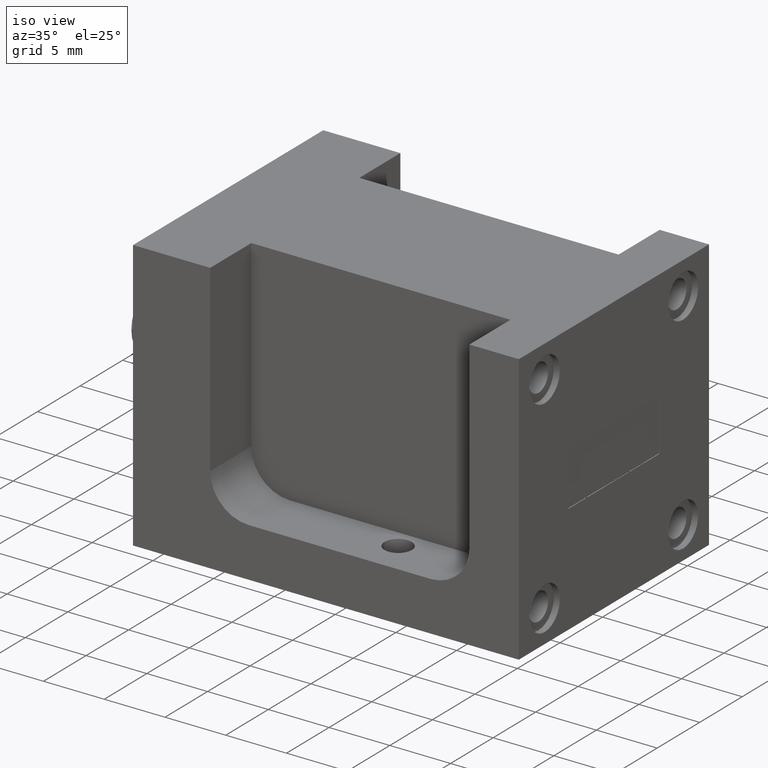
[diagram: clean part render]
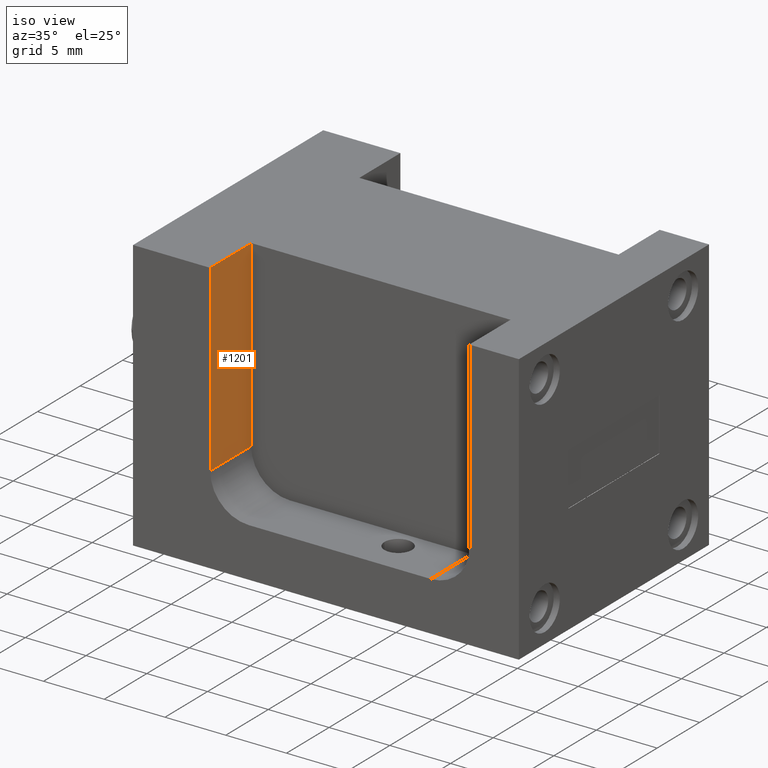
[diagram: same view with one face highlighted and labeled with its STEP entity id]
A machine part, iso view. The second image highlights one B-rep face of the part: STEP entity #1201.
In plain terms, the highlighted planar face has unit normal (-1, 0, 0).
Its self-contained STEP definition (entity closure, byte-faithful):
#100 = CARTESIAN_POINT ( 'NONE',  ( -0.7956602320673339400, -0.7914438674591303100, 0.5882252380678194600 ) ) ;
#147 = ORIENTED_EDGE ( 'NONE', *, *, #1031, .T. ) ;
#266 = LINE ( 'NONE', #5766, #3174 ) ;
#278 = EDGE_CURVE ( 'NONE', #5492, #6897, #2713, .T. ) ;
#356 = VECTOR ( 'NONE', #1969, 39.37007874015748100 ) ;
#616 = DIRECTION ( 'NONE',  ( -1.000000000000000000, 0.0000000000000000000, 0.0000000000000000000 ) ) ;
#1031 = EDGE_CURVE ( 'NONE', #6259, #1958, #5004, .T. ) ;
#1201 = ADVANCED_FACE ( 'NONE', ( #5561 ), #7589, .F. ) ;
#1277 = VECTOR ( 'NONE', #3890, 39.37007874015748100 ) ;
#1412 = AXIS2_PLACEMENT_3D ( 'NONE', #2922, #616, #4689 ) ;
#1499 = EDGE_LOOP ( 'NONE', ( #147, #6310, #5724, #1564 ) ) ;
#1564 = ORIENTED_EDGE ( 'NONE', *, *, #4418, .T. ) ;
#1867 = CARTESIAN_POINT ( 'NONE',  ( -0.7956602320673339400, -0.6014438674591303700, 0.5882252380678194600 ) ) ;
#1958 = VERTEX_POINT ( 'NONE', #4398 ) ;
#1969 = DIRECTION ( 'NONE',  ( -0.0000000000000000000, -0.0000000000000000000, -1.000000000000000000 ) ) ;
#2580 = VECTOR ( 'NONE', #7046, 39.37007874015748100 ) ;
#2713 = LINE ( 'NONE', #5418, #356 ) ;
#2722 = CARTESIAN_POINT ( 'NONE',  ( -0.7956602320673339400, -0.7914438674591303100, -0.1317747619321807700 ) ) ;
#2922 = CARTESIAN_POINT ( 'NONE',  ( -0.7956602320673339400, -0.6014438674591303700, -0.1317747619321807700 ) ) ;
#3174 = VECTOR ( 'NONE', #5251, 39.37007874015748100 ) ;
#3890 = DIRECTION ( 'NONE',  ( -0.0000000000000000000, -0.0000000000000000000, -1.000000000000000000 ) ) ;
#4398 = CARTESIAN_POINT ( 'NONE',  ( -0.7956602320673339400, -0.7914438674591303100, -0.006774761932180760300 ) ) ;
#4418 = EDGE_CURVE ( 'NONE', #5492, #6259, #5425, .T. ) ;
#4689 = DIRECTION ( 'NONE',  ( 0.0000000000000000000, 0.0000000000000000000, 1.000000000000000000 ) ) ;
#5004 = LINE ( 'NONE', #2722, #1277 ) ;
#5178 = CARTESIAN_POINT ( 'NONE',  ( -0.7956602320673339400, -0.6014438674591303700, 0.5882252380678194600 ) ) ;
#5251 = DIRECTION ( 'NONE',  ( -0.0000000000000000000, 1.000000000000000000, -0.0000000000000000000 ) ) ;
#5418 = CARTESIAN_POINT ( 'NONE',  ( -0.7956602320673339400, -0.6014438674591303700, -0.1317747619321807700 ) ) ;
#5425 = LINE ( 'NONE', #1867, #2580 ) ;
#5492 = VERTEX_POINT ( 'NONE', #5178 ) ;
#5561 = FACE_OUTER_BOUND ( 'NONE', #1499, .T. ) ;
#5724 = ORIENTED_EDGE ( 'NONE', *, *, #278, .F. ) ;
#5766 = CARTESIAN_POINT ( 'NONE',  ( -0.7956602320673339400, -0.6014438674591303700, -0.006774761932180760300 ) ) ;
#6259 = VERTEX_POINT ( 'NONE', #100 ) ;
#6310 = ORIENTED_EDGE ( 'NONE', *, *, #7497, .T. ) ;
#6367 = CARTESIAN_POINT ( 'NONE',  ( -0.7956602320673339400, -0.6014438674591303700, -0.006774761932180760300 ) ) ;
#6897 = VERTEX_POINT ( 'NONE', #6367 ) ;
#7046 = DIRECTION ( 'NONE',  ( -0.0000000000000000000, -1.000000000000000000, -0.0000000000000000000 ) ) ;
#7497 = EDGE_CURVE ( 'NONE', #1958, #6897, #266, .T. ) ;
#7589 = PLANE ( 'NONE',  #1412 ) ;